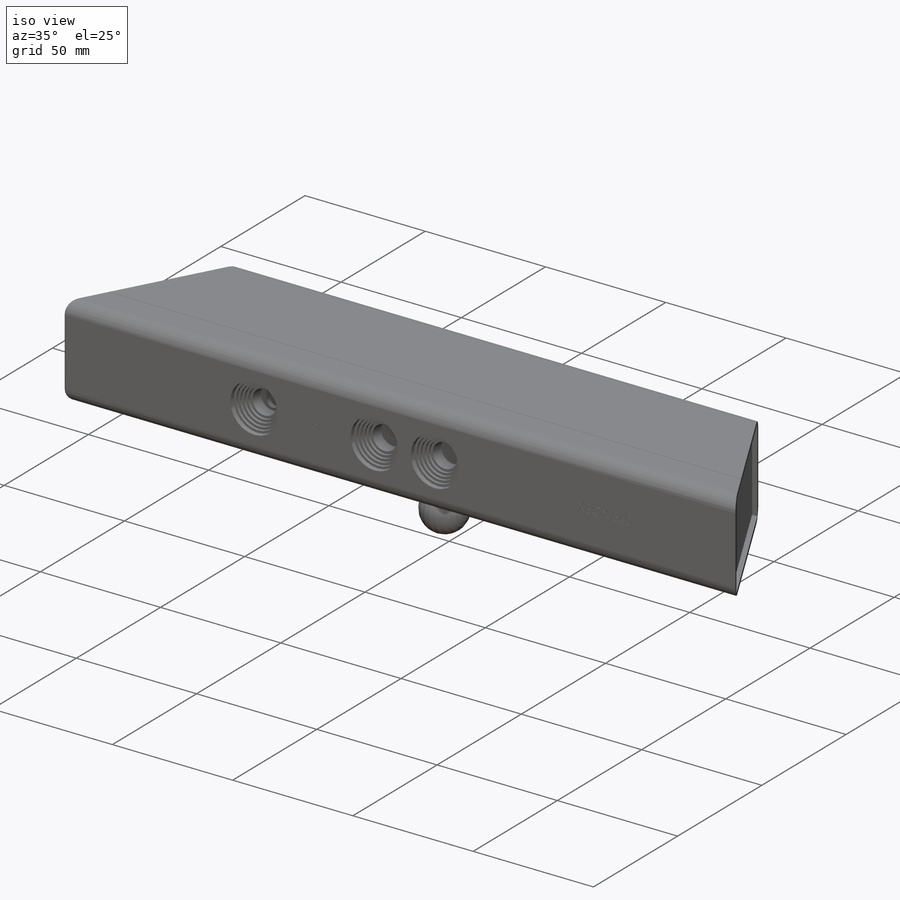
[diagram: iso view]
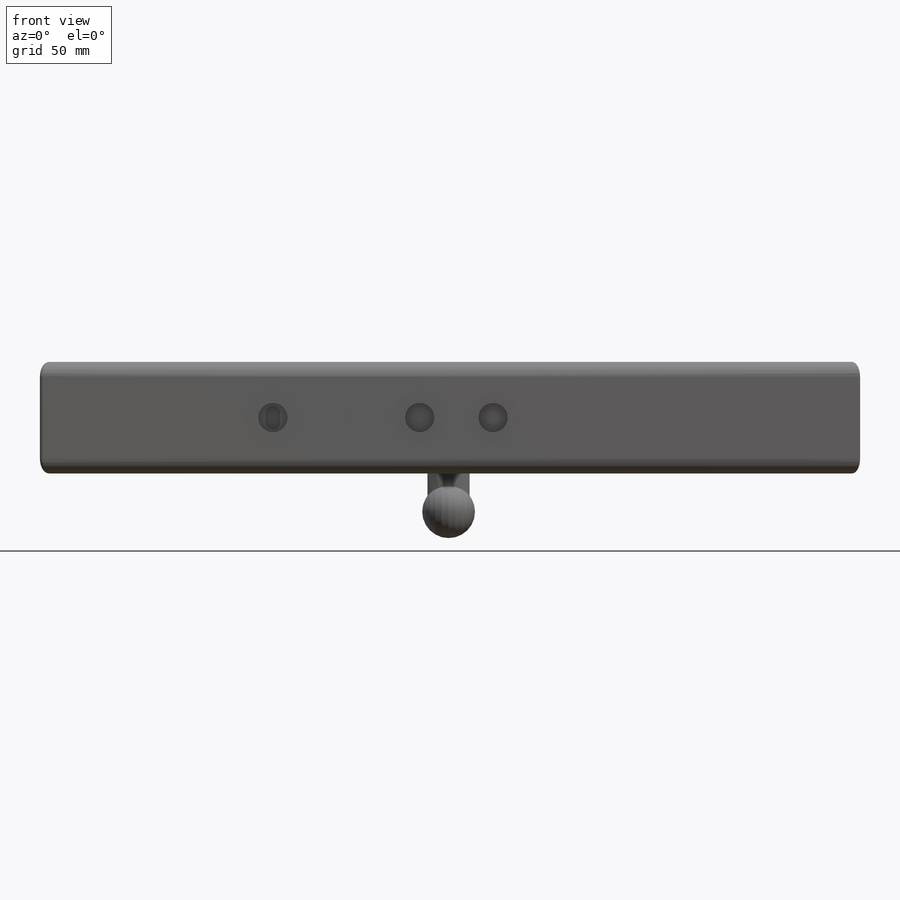
[diagram: front view]
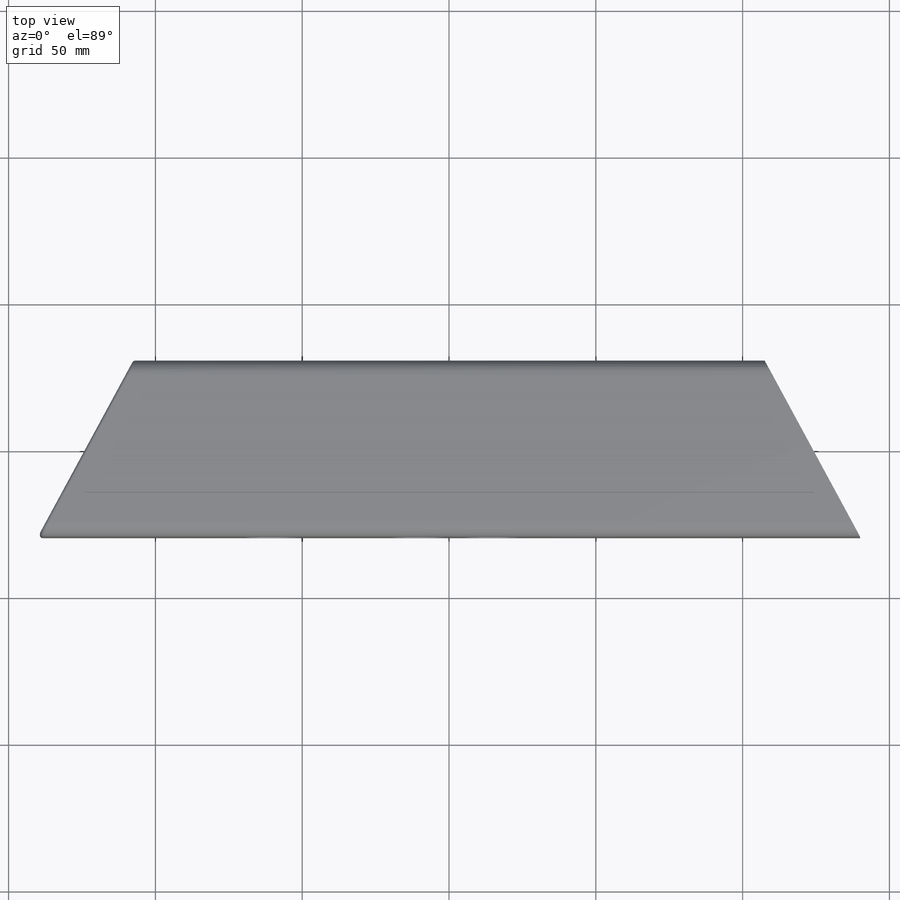
[diagram: top view]
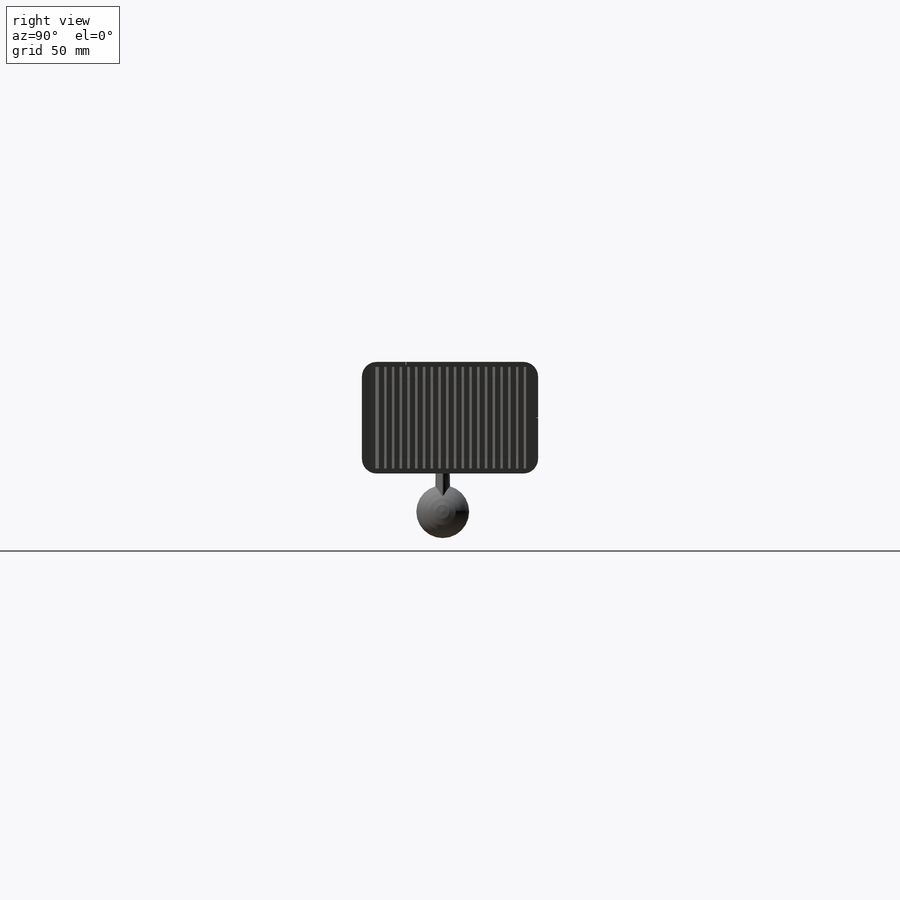
[diagram: right view]
SOLIDWORKS PART (.sldprt)
format: sldprt  version: not decoded by parser v0  size: 3,504,128 bytes
history: native  units: mm
features: sketch x23, cut_extrude x15, extrude x7, mirror x5, fillet x5, material x1, revolve x1 (+11 scaffold rows collapsed)
feature tree (68):
  scaffold x11  (default folders/planes/origin — collapsed)
  material  "Material <not specified>"
  sketch  "Sketch1"  dims[D1=60.0mm D2=280.0mm]
  extrude  "Boss-Extrude1"  Depth=38mm
  sketch  "Sketch2"  dims[D1=32.5mm D2=32.5mm D3=60.0mm D4=60.0mm D5=~68.23672mm D6=60.0mm]
  sketch  "Sketch9"  dims[c1.D1=34.0mm c1.D2=55.0mm c2.D1=~14.862052mm c2.D2=~85.960987mm]
  cut_extrude  "Cut-Extrude4"  Depth=35mm
  sketch  "Sketch11"  dims[D1=~61.611334mm]
  extrude  "Boss-Extrude2"  [1 undecoded]
  cut_extrude  "Cut-Extrude6"  [1 undecoded]
  mirror  "Mirror2"
  mirror  "Mirror3"
  sketch  "Sketch12"  dims[D1=25.0mm]
  cut_extrude  "Cut-Extrude7"  Depth=2mm
  sketch  "Sketch13"  dims[D1=80.0mm]
  cut_extrude  "Cut-Extrude8"  Depth=3mm
  sketch  "Sketch14"  dims[D1=16.0mm]
  cut_extrude  "Cut-Extrude9"  Depth=1mm
  sketch  "Sketch15"  dims[D1=14.0mm]
  cut_extrude  "Cut-Extrude10"  Depth=1mm
  sketch  "Sketch16"  dims[D1=12.0mm]
  cut_extrude  "Cut-Extrude11"  Depth=1mm
  sketch  "Sketch17"  dims[D1=10.0mm]
  cut_extrude  "Cut-Extrude12"  Depth=5mm
  sketch  "Sketch20"  dims[D1=~3.000957mm]
  cut_extrude  "Cut-Extrude13"  Depth=2mm
  sketch  "Sketch21"  dims[D1=~0.353084mm]
  extrude  "Boss-Extrude3"  Depth=0.1mm
  sketch  "Sketch23"  dims[D1=5.0mm]
  extrude  "Boss-Extrude4"  Depth=0.5mm
  sketch  "Sketch24"  dims[D1=~110.994581mm]
  cut_extrude  "Cut-Extrude14"  Depth=0.1mm
  sketch  "Sketch25"
  cut_extrude  "Cut-Extrude15"  Depth=0.1mm
  sketch  "Sketch26"  dims[D1=0.1mm D2=265.0mm]
  cut_extrude  "Cut-Extrude16"  Depth=1mm
  fillet  "Fillet7"  Radius=5mm
  fillet  "Fillet8"  Radius=1mm
  sketch  "Sketch27"  dims[c1.D1=0.1mm c1.D2=214.4mm c2.D1=0.1mm c2.D2=~203.338681mm c3.D1=0.1mm c3.D2=240.0mm c4.D1=0.1mm c4.D2=220.3mm]
  cut_extrude  "Cut-Extrude17"  Depth=0.5mm
  sketch  "Sketch29"  dims[c1.D1=50.0mm c2.D1=~118.442929deg c3.D1=~3.077522mm c4.D1=90.0deg c5.D1=~13.86478mm c6.D1=~61.557071deg c7.D1=20.0]
  extrude  "Boss-Extrude8"  Depth=34.6mm
  mirror  "Mirror6"
  sketch  "Sketch30"  dims[c1.D1=105.0mm c1.D2=~11.715811mm c2.D1=20.0mm c2.D2=105.0mm c3.D1=~18.934423mm c3.D2=~103.980499mm c4.D1=8.0mm c4.D2=~0.878832mm c4.D3=7.7062mm c4.D4=~8.089658mm c4.D5=1.0mm c5.D3=~7.031041mm c5.D4=8.0mm c6.D3=8.0mm c6.D5=1.0mm c6.D1=51.0 c7.D5=51.0]
  cut_extrude  "Cut-Extrude18"  Depth=0.01mm
  mirror  "Mirror7"
  sketch  "Sketch31"  dims[c1.D1=5.0mm c1.D2=10.0mm c2.D1=~15.079953mm]
  extrude  "Boss-Extrude9"  Depth=10mm
  fillet  "Fillet9"  Radius=0.5mm
  fillet  "Fillet10"  Radius=0.5mm
  fillet  "Fillet11"  Radius=0.5mm
  sketch  "Sketch37"  dims[c1.D1=~0.355979mm c1.D2=~14.235528mm c2.D1=~0.643559mm]
  extrude  "Boss-Extrude11"  Depth=1mm
  sketch  "Sketch38"  dims[c1.D1=18.0mm c1.D2=11.0mm c2.D1=18.0mm]
  revolve  "Revolve3"  Angle=360deg
  sketch  "Sketch39"  dims[D1=~0.000194mm]
  cut_extrude  "Cut-Extrude19"  Depth=0.1mm
  mirror  "Mirror8"
decode coverage: 48 of 56 modeling features carry decoded parameters
note: ~ marks probable driven/reference dimensions
note: 2 parameter values undecoded
note: suppression state not decoded; provenance and decode notes live in map.json
